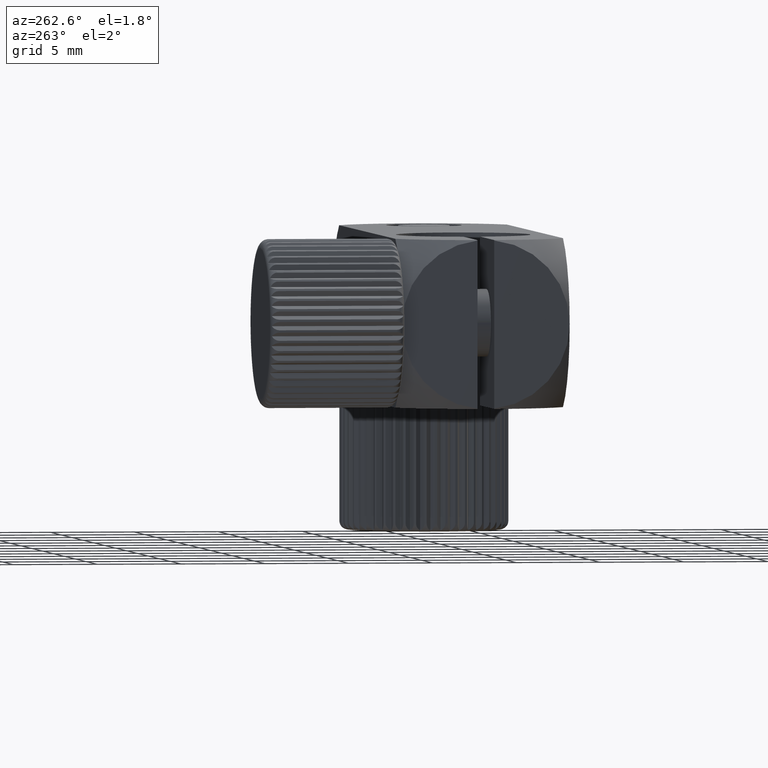
[diagram: clean part render]
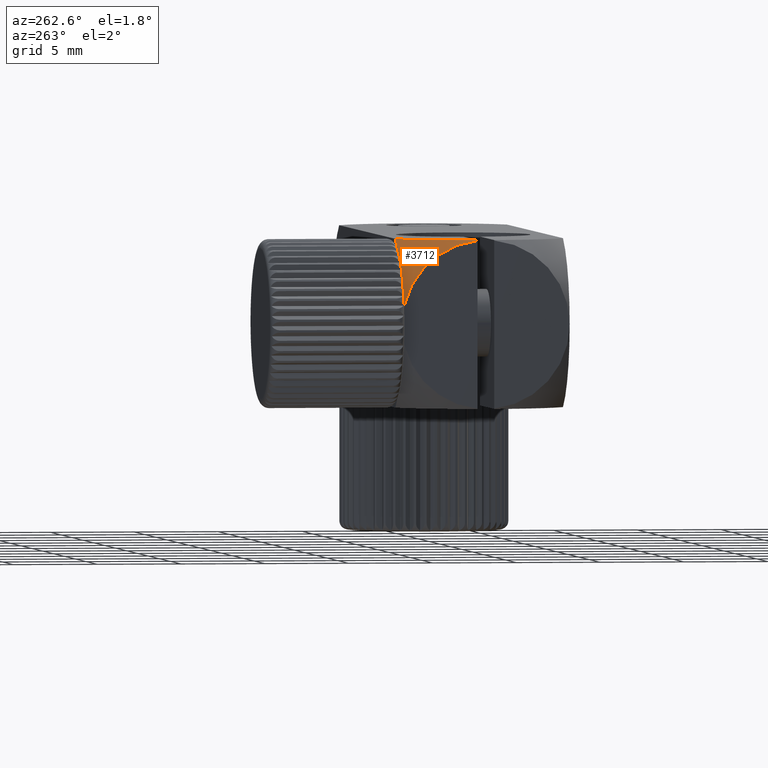
[diagram: same view with one face highlighted and labeled with its STEP entity id]
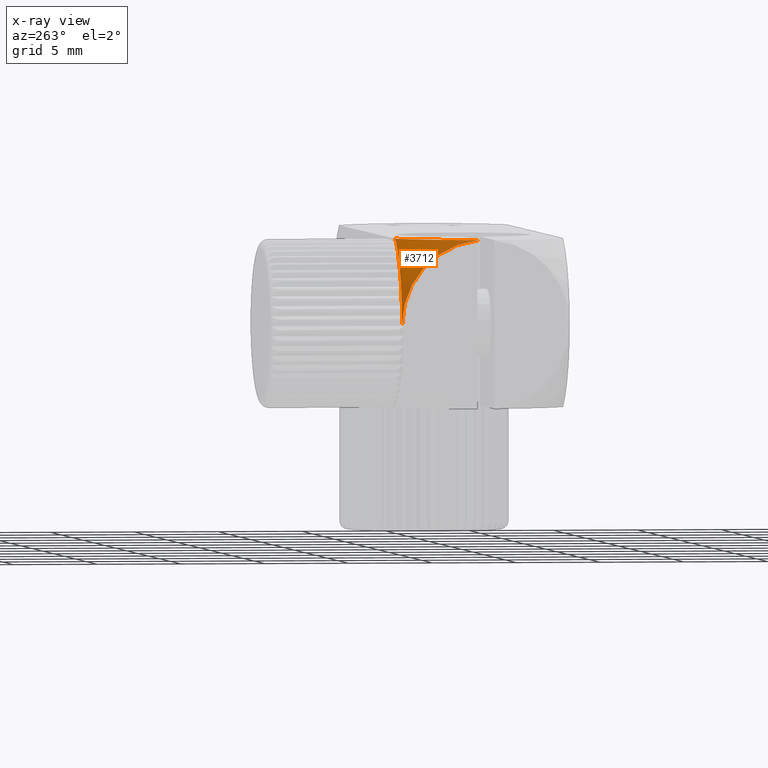
[diagram: x-ray of the same camera — body ghosted, the highlighted face saturated]
A machine part, auxiliary view. The second image highlights one B-rep face of the part: STEP entity #3712.
The next image is the same camera in x-ray: the body ghosted, the highlighted face saturated — about 0% of this face is hidden behind the body in this view.
In plain terms, the highlighted spherical surface has radius 7.5 mm.
Its self-contained STEP definition (entity closure, byte-faithful):
#438 = DIRECTION ( 'NONE',  ( -1.000000000000000000, -0.0000000000000000000, -0.0000000000000000000 ) ) ;
#521 = CARTESIAN_POINT ( 'NONE',  ( -15.97759441908055000, 0.5000000000000000000, 5.000000000000000000 ) ) ;
#1529 = DIRECTION ( 'NONE',  ( 1.000000000000000000, 0.0000000000000000000, 0.0000000000000000000 ) ) ;
#1591 = VERTEX_POINT ( 'NONE', #521 ) ;
#1681 = AXIS2_PLACEMENT_3D ( 'NONE', #6691, #9740, #6429 ) ;
#2432 = AXIS2_PLACEMENT_3D ( 'NONE', #19381, #438, #19119 ) ;
#2949 = CIRCLE ( 'NONE', #6527, 5.590169943749474500 ) ;
#3712 = ADVANCED_FACE ( 'NONE', ( #8307 ), #14218, .T. ) ;
#4083 = DIRECTION ( 'NONE',  ( 0.0000000000000000000, 0.0000000000000000000, -1.000000000000000000 ) ) ;
#4903 = CIRCLE ( 'NONE', #1681, 5.590169943749473600 ) ;
#5635 = EDGE_CURVE ( 'NONE', #20001, #17124, #13223, .T. ) ;
#6429 = DIRECTION ( 'NONE',  ( 1.000000000000000000, 1.551583845779545700E-016, 0.0000000000000000000 ) ) ;
#6527 = AXIS2_PLACEMENT_3D ( 'NONE', #17188, #9549, #1529 ) ;
#6691 = CARTESIAN_POINT ( 'NONE',  ( -10.40983005625052700, 5.000000000000000900, 0.0000000000000000000 ) ) ;
#7173 = CARTESIAN_POINT ( 'NONE',  ( -10.40983005625052700, 0.0000000000000000000, 0.0000000000000000000 ) ) ;
#8307 = FACE_OUTER_BOUND ( 'NONE', #15504, .T. ) ;
#8361 = CARTESIAN_POINT ( 'NONE',  ( -10.40983005625052700, 0.5000000000000000000, 0.0000000000000000000 ) ) ;
#9549 = DIRECTION ( 'NONE',  ( 0.0000000000000000000, 0.0000000000000000000, 1.000000000000000000 ) ) ;
#9740 = DIRECTION ( 'NONE',  ( 1.355252715606880800E-016, -1.000000000000000000, 0.0000000000000000000 ) ) ;
#10465 = ORIENTED_EDGE ( 'NONE', *, *, #19939, .T. ) ;
#10754 = ORIENTED_EDGE ( 'NONE', *, *, #18733, .T. ) ;
#11970 = AXIS2_PLACEMENT_3D ( 'NONE', #7173, #4083, #16457 ) ;
#13129 = CARTESIAN_POINT ( 'NONE',  ( -16.00000000000000000, 0.5000000000000000000, 4.974937185533099700 ) ) ;
#13223 = CIRCLE ( 'NONE', #2432, 5.000000000000000000 ) ;
#14218 = SPHERICAL_SURFACE ( 'NONE', #11970, 7.500000000000000000 ) ;
#14239 = ORIENTED_EDGE ( 'NONE', *, *, #19808, .F. ) ;
#14493 = DIRECTION ( 'NONE',  ( 0.0000000000000000000, 1.000000000000000000, 0.0000000000000000000 ) ) ;
#14720 = CIRCLE ( 'NONE', #15624, 7.483314773547882700 ) ;
#15504 = EDGE_LOOP ( 'NONE', ( #10465, #14239, #10754, #19922 ) ) ;
#15624 = AXIS2_PLACEMENT_3D ( 'NONE', #8361, #14493, #16141 ) ;
#16141 = DIRECTION ( 'NONE',  ( 0.0000000000000000000, 0.0000000000000000000, 1.000000000000000000 ) ) ;
#16219 = CARTESIAN_POINT ( 'NONE',  ( -16.00000000000000000, 5.000000000000000000, 0.0000000000000000000 ) ) ;
#16457 = DIRECTION ( 'NONE',  ( 0.0000000000000000000, 1.000000000000000000, 0.0000000000000000000 ) ) ;
#17124 = VERTEX_POINT ( 'NONE', #16219 ) ;
#17188 = CARTESIAN_POINT ( 'NONE',  ( -10.40983005625052700, 0.0000000000000000000, 5.000000000000000000 ) ) ;
#17622 = CARTESIAN_POINT ( 'NONE',  ( -12.90983005625052500, 5.000000000000000900, 5.000000000000000000 ) ) ;
#17955 = VERTEX_POINT ( 'NONE', #17622 ) ;
#18733 = EDGE_CURVE ( 'NONE', #17955, #17124, #4903, .T. ) ;
#19119 = DIRECTION ( 'NONE',  ( 0.0000000000000000000, 0.0000000000000000000, 1.000000000000000000 ) ) ;
#19381 = CARTESIAN_POINT ( 'NONE',  ( -16.00000000000000000, 0.0000000000000000000, 0.0000000000000000000 ) ) ;
#19808 = EDGE_CURVE ( 'NONE', #17955, #1591, #2949, .T. ) ;
#19922 = ORIENTED_EDGE ( 'NONE', *, *, #5635, .F. ) ;
#19939 = EDGE_CURVE ( 'NONE', #20001, #1591, #14720, .T. ) ;
#20001 = VERTEX_POINT ( 'NONE', #13129 ) ;